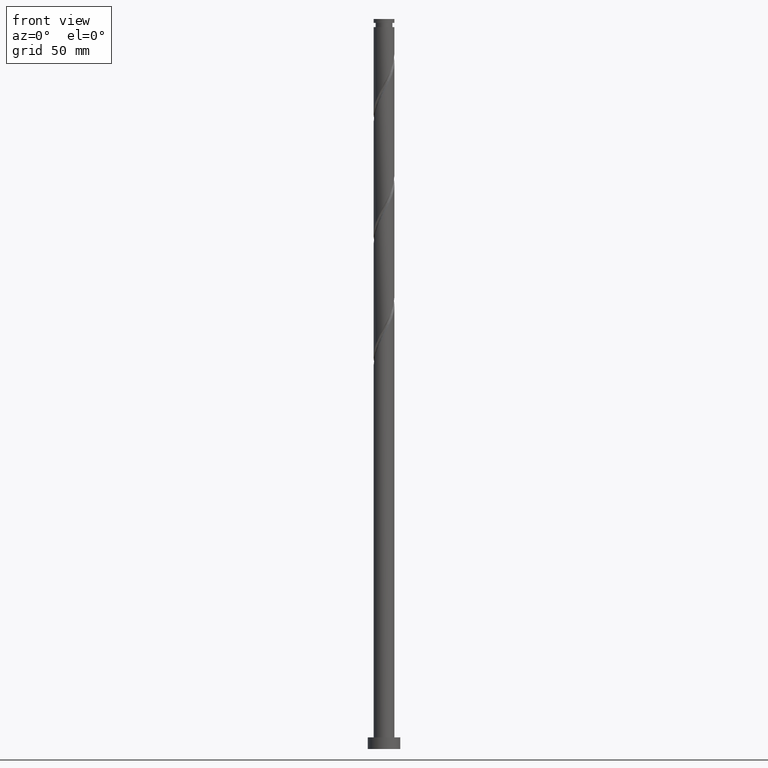
[diagram: clean part render]
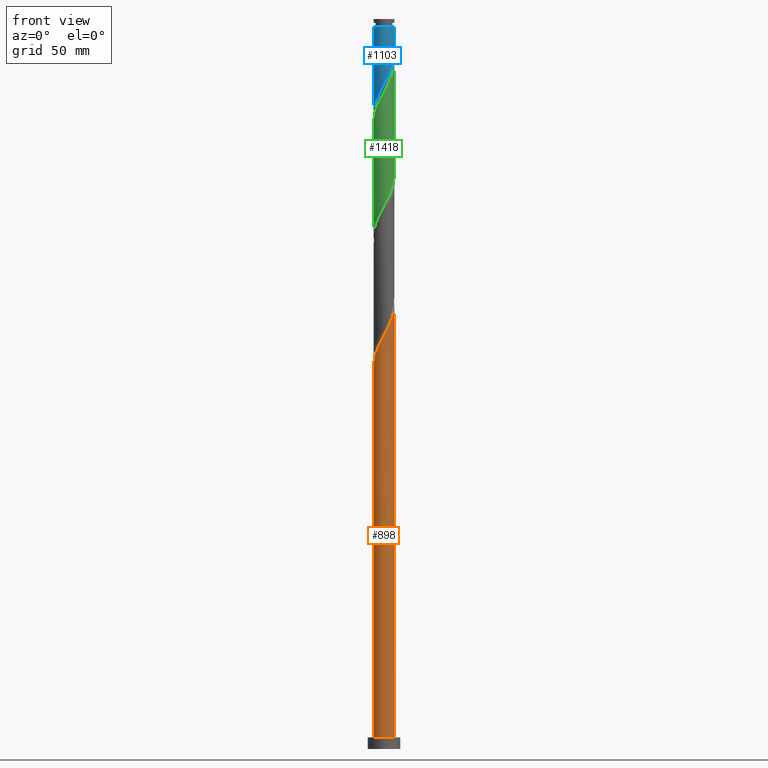
[diagram: same view with three faces highlighted in distinct colors, each labeled with its STEP entity id]
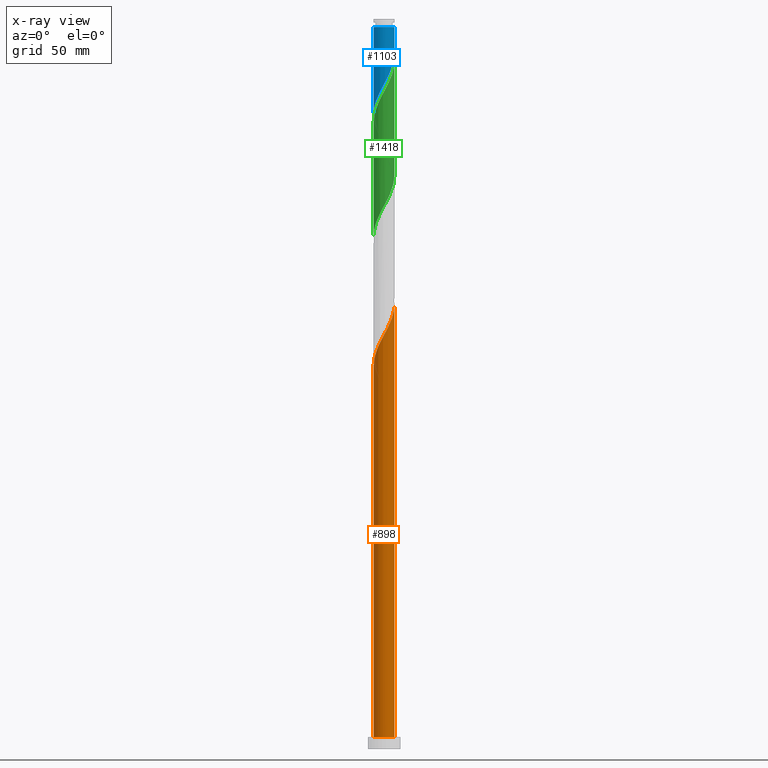
[diagram: x-ray of the same camera — body ghosted, the three highlighted faces saturated]
A machine part, front view with three faces highlighted in distinct colors.
The next image is the same camera in x-ray (body ghosted, the three faces saturated) — at least one of them is partly hidden behind the body in this view.
Their STEP definitions:

[orange] entity #898 — the highlighted cylindrical surface (edge-blend (fillet) strip) has radius 4.5 mm, axis along (-0, -0, -1).
#23 = ORIENTED_EDGE ( 'NONE', *, *, #960, .T. ) ;
#69 = ORIENTED_EDGE ( 'NONE', *, *, #1566, .F. ) ;
#95 = CARTESIAN_POINT ( 'NONE',  ( 3.449711278888141219, -2.889548769671832940, 185.8821435053400819 ) ) ;
#133 = VERTEX_POINT ( 'NONE', #401 ) ;
#144 = ORIENTED_EDGE ( 'NONE', *, *, #1041, .T. ) ;
#169 = CARTESIAN_POINT ( 'NONE',  ( 0.000000000000000000, 0.000000000000000000, 315.0000000000000000 ) ) ;
#175 = EDGE_LOOP ( 'NONE', ( #69, #1411, #144, #23 ) ) ;
#179 = DIRECTION ( 'NONE',  ( -1.000000000000000000, 0.000000000000000000, 0.000000000000000000 ) ) ;
#198 = CYLINDRICAL_SURFACE ( 'NONE', #943, 4.500000000000000000 ) ;
#212 = CARTESIAN_POINT ( 'NONE',  ( -4.100167112320058926, -1.854354240982300173, 169.0071435053400819 ) ) ;
#237 = CARTESIAN_POINT ( 'NONE',  ( 0.8954886933959598228, -4.410000000000006359, 180.2571435053400251 ) ) ;
#251 = CARTESIAN_POINT ( 'NONE',  ( 3.775285233751815461, -2.500859658072934089, 186.8196435053399682 ) ) ;
#263 = CARTESIAN_POINT ( 'NONE',  ( -1.106619855200059233, -4.361810690077811081, 176.5071435053399682 ) ) ;
#337 = FACE_OUTER_BOUND ( 'NONE', #175, .T. ) ;
#354 = CARTESIAN_POINT ( 'NONE',  ( -4.500000000000000000, 0.000000000000000000, 5.000000000000000000 ) ) ;
#374 = CARTESIAN_POINT ( 'NONE',  ( -0.6151618214612604163, -4.486496802515032911, 177.4446435053400251 ) ) ;
#381 = CARTESIAN_POINT ( 'NONE',  ( -3.584734724821537544, -2.720234723816808753, 170.8821435053400251 ) ) ;
#401 = CARTESIAN_POINT ( 'NONE',  ( 4.500000000000000000, 5.510910596163088569E-16, 5.000000000000000000 ) ) ;
#409 = CARTESIAN_POINT ( 'NONE',  ( 2.720234723816808753, -3.584734724821537544, 184.0071435053399966 ) ) ;
#477 = EDGE_CURVE ( 'NONE', #1034, #1369, #552, .T. ) ;
#482 = CARTESIAN_POINT ( 'NONE',  ( -4.500000000000005329, -4.328474321242565693E-16, 165.4576264274339792 ) ) ;
#506 = CARTESIAN_POINT ( 'NONE',  ( -4.410000000000006359, -0.8954886933959601558, 167.1321435053400251 ) ) ;
#545 = LINE ( 'NONE', #1403, #1069 ) ;
#552 =( BOUNDED_CURVE ( )  B_SPLINE_CURVE ( 2, ( #1386, #1238, #506, #1093, #212, #1706, #381, #1852, #1742, #1144, #681, #1110, #263, #374, #1271, #1264, #237, #980, #1714, #971, #409, #1731, #95, #251, #998, #555, #666, #1867, #673, #1860, #1257 ),
 .UNSPECIFIED., .F., .T. ) 
 B_SPLINE_CURVE_WITH_KNOTS ( ( 3, 2, 2, 2, 2, 2, 2, 2, 2, 2, 2, 2, 2, 2, 2, 3 ),
 ( 0.05453034012992229868, 0.06250000000000000000, 0.07142857142857139685, 0.08035714285714290472, 0.08928571428571430157, 0.09821428571428569843, 0.1071428571428570953, 0.1160714285714286031, 0.1250000000000000000, 0.1339285714285713969, 0.1428571428571429047, 0.1517857142857143016, 0.1607142857142856984, 0.1696428571428570953, 0.1785714285714286031, 0.1795303401299218615 ),
 .UNSPECIFIED. ) 
 CURVE ( )  GEOMETRIC_REPRESENTATION_ITEM ( )  RATIONAL_B_SPLINE_CURVE ( ( 0.9079949616362074094, 0.9039886423360707912, 0.9090909090909374823, 0.9033747362666124658, 0.9090909090909374823, 0.9033747362666124658, 0.9090909090909374823, 0.9033747362666124658, 0.9090909090909374823, 0.9033747362666124658, 0.9090909090909374823, 0.9033747362666124658, 0.9090909090909374823, 0.9033747362666124658, 0.9090909090909374823, 0.9033747362666124658, 0.9090909090909374823, 0.9033747362666124658, 0.9090909090909374823, 0.9033747362666124658, 0.9090909090909374823, 0.9033747362666124658, 0.9090909090909374823, 0.9033747362666124658, 0.9090909090909374823, 0.9033747362666124658, 0.9090909090909374823, 0.9033747362666124658, 0.9090909090909374823, 0.9084770030214794900, 0.9079949616362078535 ) ) 
 REPRESENTATION_ITEM ( '' )  );
#555 = CARTESIAN_POINT ( 'NONE',  ( 4.237124577640583034, -1.598077888938858049, 188.6946435053399966 ) ) ;
#636 = AXIS2_PLACEMENT_3D ( 'NONE', #1236, #799, #925 ) ;
#637 = DIRECTION ( 'NONE',  ( -0.000000000000000000, -0.000000000000000000, -1.000000000000000000 ) ) ;
#648 = DIRECTION ( 'NONE',  ( -0.000000000000000000, -0.000000000000000000, -1.000000000000000000 ) ) ;
#666 = CARTESIAN_POINT ( 'NONE',  ( 4.361810690077811081, -1.106619855200059233, 189.6321435053400251 ) ) ;
#673 = CARTESIAN_POINT ( 'NONE',  ( 4.498697073123638646, -0.1082803965123958490, 191.5071435053400535 ) ) ;
#681 = CARTESIAN_POINT ( 'NONE',  ( -2.049468773505896735, -4.006204905696198360, 174.6321435053400535 ) ) ;
#768 = CARTESIAN_POINT ( 'NONE',  ( -4.500000000000000000, 0.000000000000000000, 315.0000000000000000 ) ) ;
#799 = DIRECTION ( 'NONE',  ( 0.000000000000000000, 0.000000000000000000, 1.000000000000000000 ) ) ;
#898 = ADVANCED_FACE ( 'NONE', ( #337 ), #198, .T. ) ;
#925 = DIRECTION ( 'NONE',  ( 1.000000000000000000, 0.000000000000000000, 0.000000000000000000 ) ) ;
#943 = AXIS2_PLACEMENT_3D ( 'NONE', #169, #648, #179 ) ;
#960 = EDGE_CURVE ( 'NONE', #1086, #133, #1470, .T. ) ;
#971 = CARTESIAN_POINT ( 'NONE',  ( 2.316332123609148752, -3.891231568372342853, 183.0696435053400251 ) ) ;
#980 = CARTESIAN_POINT ( 'NONE',  ( 1.392376358355450039, -4.309102656267771891, 181.1946435053400251 ) ) ;
#998 = CARTESIAN_POINT ( 'NONE',  ( 4.006204905696198360, -2.049468773505896735, 187.7571435053399966 ) ) ;
#1034 = VERTEX_POINT ( 'NONE', #482 ) ;
#1041 = EDGE_CURVE ( 'NONE', #1034, #1086, #1687, .T. ) ;
#1069 = VECTOR ( 'NONE', #1844, 1000.000000000000000 ) ;
#1086 = VERTEX_POINT ( 'NONE', #354 ) ;
#1093 = CARTESIAN_POINT ( 'NONE',  ( -4.309102656267771891, -1.392376358355450483, 168.0696435053399966 ) ) ;
#1110 = CARTESIAN_POINT ( 'NONE',  ( -1.598077888938858049, -4.237124577640583034, 175.5696435053399966 ) ) ;
#1144 = CARTESIAN_POINT ( 'NONE',  ( -2.500859658072933200, -3.775285233751815461, 173.6946435053400251 ) ) ;
#1236 = CARTESIAN_POINT ( 'NONE',  ( 0.000000000000000000, 0.000000000000000000, 5.000000000000000000 ) ) ;
#1238 = CARTESIAN_POINT ( 'NONE',  ( -4.500000000000004441, -0.4522670168666588220, 166.2958975063976368 ) ) ;
#1257 = CARTESIAN_POINT ( 'NONE',  ( 4.500000000000005329, -1.865721690190761372E-16, 191.7076264274339792 ) ) ;
#1264 = CARTESIAN_POINT ( 'NONE',  ( 0.3986010284364694400, -4.510897343732239051, 179.3196435053400819 ) ) ;
#1271 = CARTESIAN_POINT ( 'NONE',  ( -0.1082803965123954049, -4.498697073123638646, 178.3821435053400251 ) ) ;
#1369 = VERTEX_POINT ( 'NONE', #1767 ) ;
#1386 = CARTESIAN_POINT ( 'NONE',  ( -4.500000000000005329, -4.328474321242566186E-16, 165.4576264274339792 ) ) ;
#1403 = CARTESIAN_POINT ( 'NONE',  ( 4.500000000000000000, 5.510910596163088569E-16, 315.0000000000000000 ) ) ;
#1411 = ORIENTED_EDGE ( 'NONE', *, *, #477, .F. ) ;
#1470 = CIRCLE ( 'NONE', #636, 4.500000000000000000 ) ;
#1566 = EDGE_CURVE ( 'NONE', #1369, #133, #545, .T. ) ;
#1687 = LINE ( 'NONE', #768, #1875 ) ;
#1706 = CARTESIAN_POINT ( 'NONE',  ( -3.891231568372342853, -2.316332123609149196, 169.9446435053400251 ) ) ;
#1714 = CARTESIAN_POINT ( 'NONE',  ( 1.854354240982299729, -4.100167112320058926, 182.1321435053400251 ) ) ;
#1731 = CARTESIAN_POINT ( 'NONE',  ( 3.124137324024466089, -3.278237881270730458, 184.9446435053400535 ) ) ;
#1742 = CARTESIAN_POINT ( 'NONE',  ( -2.889548769671832940, -3.449711278888141663, 172.7571435053400819 ) ) ;
#1767 = CARTESIAN_POINT ( 'NONE',  ( 4.500000000000005329, -1.865721690190761372E-16, 191.7076264274339792 ) ) ;
#1844 = DIRECTION ( 'NONE',  ( -0.000000000000000000, -0.000000000000000000, -1.000000000000000000 ) ) ;
#1852 = CARTESIAN_POINT ( 'NONE',  ( -3.278237881270730458, -3.124137324024466089, 171.8196435053400251 ) ) ;
#1860 = CARTESIAN_POINT ( 'NONE',  ( 4.500000000000006217, -0.05414803724876988966, 191.6072637392088609 ) ) ;
#1867 = CARTESIAN_POINT ( 'NONE',  ( 4.486496802515032911, -0.6151618214612607494, 190.5696435053400535 ) ) ;
#1875 = VECTOR ( 'NONE', #637, 1000.000000000000000 ) ;

[blue] entity #1103 — the highlighted cylindrical surface (edge-blend (fillet) strip) has radius 4.5 mm, axis along (-0, -0, -1).
#42 = EDGE_CURVE ( 'NONE', #1902, #300, #90, .T. ) ;
#53 = VERTEX_POINT ( 'NONE', #1716 ) ;
#79 = CARTESIAN_POINT ( 'NONE',  ( -3.775285233751811020, -2.500859658072928315, 278.6946435053400251 ) ) ;
#90 =( BOUNDED_CURVE ( )  B_SPLINE_CURVE ( 2, ( #826, #691, #119, #1001, #253, #1266, #376, #245, #1898, #557, #701, #711, #844, #1420, #383, #1586, #231, #683, #1440, #1304, #1285, #1869, #529, #79, #1128, #1294, #835, #1724, #819, #265, #1571 ),
 .UNSPECIFIED., .F., .T. ) 
 B_SPLINE_CURVE_WITH_KNOTS ( ( 3, 2, 2, 2, 2, 2, 2, 2, 2, 2, 2, 2, 2, 2, 2, 3 ),
 ( 0.3045303401299219725, 0.3125000000000000000, 0.3214285714285714524, 0.3303571428571428492, 0.3392857142857143016, 0.3482142857142856984, 0.3571428571428571508, 0.3660714285714285476, 0.3750000000000000000, 0.3839285714285714524, 0.3928571428571428492, 0.4017857142857143016, 0.4107142857142856984, 0.4196428571428571508, 0.4285714285714285476, 0.4295303401299220836 ),
 .UNSPECIFIED. ) 
 CURVE ( )  GEOMETRIC_REPRESENTATION_ITEM ( )  RATIONAL_B_SPLINE_CURVE ( ( 0.9079949616362013032, 0.9039886423360643519, 0.9090909090909310430, 0.9033747362666060265, 0.9090909090909310430, 0.9033747362666060265, 0.9090909090909310430, 0.9033747362666060265, 0.9090909090909310430, 0.9033747362666060265, 0.9090909090909310430, 0.9033747362666060265, 0.9090909090909310430, 0.9033747362666060265, 0.9090909090909310430, 0.9033747362666060265, 0.9090909090909310430, 0.9033747362666060265, 0.9090909090909310430, 0.9033747362666060265, 0.9090909090909310430, 0.9033747362666060265, 0.9090909090909310430, 0.9033747362666060265, 0.9090909090909310430, 0.9033747362666060265, 0.9090909090909310430, 0.9033747362666060265, 0.9090909090909310430, 0.9084770030214728287, 0.9079949616362011922 ) ) 
 REPRESENTATION_ITEM ( '' )  );
#100 = AXIS2_PLACEMENT_3D ( 'NONE', #1804, #1081, #1100 ) ;
#119 = CARTESIAN_POINT ( 'NONE',  ( 4.410000000000000142, -0.8954886933959605999, 298.3821435053400251 ) ) ;
#231 = CARTESIAN_POINT ( 'NONE',  ( -0.8954886933959602668, -4.410000000000000142, 285.2571435053400251 ) ) ;
#245 = CARTESIAN_POINT ( 'NONE',  ( 3.278237881270725573, -3.124137324024463425, 293.6946435053400251 ) ) ;
#253 = CARTESIAN_POINT ( 'NONE',  ( 4.100167112320052709, -1.854354240982299507, 296.5071435053400819 ) ) ;
#265 = CARTESIAN_POINT ( 'NONE',  ( -4.499999999999999112, -0.05414803724875251467, 273.9070232714711892 ) ) ;
#300 = VERTEX_POINT ( 'NONE', #619 ) ;
#325 = CARTESIAN_POINT ( 'NONE',  ( 0.000000000000000000, 0.000000000000000000, 311.5071435053400251 ) ) ;
#376 = CARTESIAN_POINT ( 'NONE',  ( 3.584734724821531326, -2.720234723816805644, 294.6321435053400819 ) ) ;
#383 = CARTESIAN_POINT ( 'NONE',  ( 0.1082803965123934897, -4.498697073123629764, 287.1321435053400819 ) ) ;
#396 = DIRECTION ( 'NONE',  ( -0.000000000000000000, -0.000000000000000000, -1.000000000000000000 ) ) ;
#438 = ORIENTED_EDGE ( 'NONE', *, *, #1244, .T. ) ;
#492 = FACE_OUTER_BOUND ( 'NONE', #733, .T. ) ;
#529 = CARTESIAN_POINT ( 'NONE',  ( -3.449711278888136334, -2.889548769671827166, 279.6321435053399682 ) ) ;
#557 = CARTESIAN_POINT ( 'NONE',  ( 2.500859658072928315, -3.775285233751811464, 291.8196435053400819 ) ) ;
#582 = ORIENTED_EDGE ( 'NONE', *, *, #836, .T. ) ;
#587 = CARTESIAN_POINT ( 'NONE',  ( 4.499999999999999112, -1.522428899195671870E-15, 300.0566605832460709 ) ) ;
#614 = DIRECTION ( 'NONE',  ( -0.000000000000000000, -0.000000000000000000, -1.000000000000000000 ) ) ;
#619 = CARTESIAN_POINT ( 'NONE',  ( -4.499999999999998224, -5.179243411969589551E-15, 273.8066605832460709 ) ) ;
#683 = CARTESIAN_POINT ( 'NONE',  ( -1.392376358355450039, -4.309102656267766562, 284.3196435053400819 ) ) ;
#691 = CARTESIAN_POINT ( 'NONE',  ( 4.500000000000000888, -0.4522670168666444446, 299.2183895042824702 ) ) ;
#701 = CARTESIAN_POINT ( 'NONE',  ( 2.049468773505890962, -4.006204905696194807, 290.8821435053400819 ) ) ;
#711 = CARTESIAN_POINT ( 'NONE',  ( 1.598077888938854496, -4.237124577640576817, 289.9446435053399682 ) ) ;
#733 = EDGE_LOOP ( 'NONE', ( #1836, #582, #438, #1319 ) ) ;
#816 = CIRCLE ( 'NONE', #878, 4.499999999999974243 ) ;
#819 = CARTESIAN_POINT ( 'NONE',  ( -4.498697073123629764, -0.1082803965123936979, 274.0071435053400819 ) ) ;
#826 = CARTESIAN_POINT ( 'NONE',  ( 4.500000000000000888, -1.522428899195672067E-15, 300.0566605832460709 ) ) ;
#835 = CARTESIAN_POINT ( 'NONE',  ( -4.361810690077804864, -1.106619855200055902, 275.8821435053400251 ) ) ;
#836 = EDGE_CURVE ( 'NONE', #949, #53, #816, .T. ) ;
#844 = CARTESIAN_POINT ( 'NONE',  ( 1.106619855200055902, -4.361810690077804864, 289.0071435053400251 ) ) ;
#858 = LINE ( 'NONE', #1738, #1693 ) ;
#878 = AXIS2_PLACEMENT_3D ( 'NONE', #325, #614, #1352 ) ;
#949 = VERTEX_POINT ( 'NONE', #1207 ) ;
#1001 = CARTESIAN_POINT ( 'NONE',  ( 4.309102656267766562, -1.392376358355450261, 297.4446435053401387 ) ) ;
#1054 = DIRECTION ( 'NONE',  ( -0.000000000000000000, -0.000000000000000000, -1.000000000000000000 ) ) ;
#1081 = DIRECTION ( 'NONE',  ( -0.000000000000000000, -0.000000000000000000, -1.000000000000000000 ) ) ;
#1100 = DIRECTION ( 'NONE',  ( -1.000000000000000000, 0.000000000000000000, 0.000000000000000000 ) ) ;
#1103 = ADVANCED_FACE ( 'NONE', ( #492 ), #1393, .T. ) ;
#1128 = CARTESIAN_POINT ( 'NONE',  ( -4.006204905696194807, -2.049468773505891406, 277.7571435053400819 ) ) ;
#1196 = VECTOR ( 'NONE', #1054, 1000.000000000000000 ) ;
#1207 = CARTESIAN_POINT ( 'NONE',  ( 4.499999999999974243, 5.510910596163074764E-16, 311.5071435053400251 ) ) ;
#1231 = CARTESIAN_POINT ( 'NONE',  ( 4.500000000000000000, 5.510910596163088569E-16, 315.0000000000000000 ) ) ;
#1244 = EDGE_CURVE ( 'NONE', #53, #300, #858, .T. ) ;
#1266 = CARTESIAN_POINT ( 'NONE',  ( 3.891231568372337968, -2.316332123609147864, 295.5696435053401387 ) ) ;
#1285 = CARTESIAN_POINT ( 'NONE',  ( -2.720234723816805200, -3.584734724821531326, 281.5071435053400819 ) ) ;
#1294 = CARTESIAN_POINT ( 'NONE',  ( -4.237124577640576817, -1.598077888938854496, 276.8196435053399682 ) ) ;
#1304 = CARTESIAN_POINT ( 'NONE',  ( -2.316332123609147864, -3.891231568372337968, 282.4446435053400819 ) ) ;
#1319 = ORIENTED_EDGE ( 'NONE', *, *, #42, .F. ) ;
#1352 = DIRECTION ( 'NONE',  ( -1.000000000000000000, 0.000000000000000000, 0.000000000000000000 ) ) ;
#1387 = LINE ( 'NONE', #1231, #1196 ) ;
#1393 = CYLINDRICAL_SURFACE ( 'NONE', #100, 4.500000000000000000 ) ;
#1420 = CARTESIAN_POINT ( 'NONE',  ( 0.6151618214612575297, -4.486496802515027582, 288.0696435053401387 ) ) ;
#1428 = EDGE_CURVE ( 'NONE', #949, #1902, #1387, .T. ) ;
#1440 = CARTESIAN_POINT ( 'NONE',  ( -1.854354240982299062, -4.100167112320052709, 283.3821435053400251 ) ) ;
#1571 = CARTESIAN_POINT ( 'NONE',  ( -4.499999999999998224, -5.179243411969589551E-15, 273.8066605832460709 ) ) ;
#1586 = CARTESIAN_POINT ( 'NONE',  ( -0.3986010284364707168, -4.510897343732231946, 286.1946435053400819 ) ) ;
#1693 = VECTOR ( 'NONE', #396, 1000.000000000000000 ) ;
#1716 = CARTESIAN_POINT ( 'NONE',  ( -4.499999999999974243, 0.000000000000000000, 311.5071435053400251 ) ) ;
#1724 = CARTESIAN_POINT ( 'NONE',  ( -4.486496802515027582, -0.6151618214612578628, 274.9446435053401387 ) ) ;
#1738 = CARTESIAN_POINT ( 'NONE',  ( -4.500000000000000000, 0.000000000000000000, 315.0000000000000000 ) ) ;
#1804 = CARTESIAN_POINT ( 'NONE',  ( 0.000000000000000000, 0.000000000000000000, 315.0000000000000000 ) ) ;
#1836 = ORIENTED_EDGE ( 'NONE', *, *, #1428, .F. ) ;
#1869 = CARTESIAN_POINT ( 'NONE',  ( -3.124137324024463425, -3.278237881270725573, 280.5696435053399682 ) ) ;
#1898 = CARTESIAN_POINT ( 'NONE',  ( 2.889548769671827166, -3.449711278888136778, 292.7571435053400251 ) ) ;
#1902 = VERTEX_POINT ( 'NONE', #587 ) ;

[green] entity #1418 — the highlighted cylindrical surface (edge-blend (fillet) strip) has radius 4.5 mm, axis along (-0, -0, -1).
#20 = CARTESIAN_POINT ( 'NONE',  ( 0.3986010284364694400, -4.510897343732239051, 284.3196435053400251 ) ) ;
#41 = CARTESIAN_POINT ( 'NONE',  ( -0.3986010284364707168, -4.510897343732231946, 233.6946435053400819 ) ) ;
#52 = CARTESIAN_POINT ( 'NONE',  ( -2.316332123609147864, -3.891231568372337968, 229.9446435053400535 ) ) ;
#108 =( BOUNDED_CURVE ( )  B_SPLINE_CURVE ( 2, ( #1672, #331, #1661, #1533, #631, #621, #1094, #1827, #204, #1202, #938, #1064, #476, #1799, #920, #41, #1221, #184, #1649, #52, #1819, #487, #793, #1075, #496, #1085, #1681, #341, #1239, #1523, #1835 ),
 .UNSPECIFIED., .F., .T. ) 
 B_SPLINE_CURVE_WITH_KNOTS ( ( 3, 2, 2, 2, 2, 2, 2, 2, 2, 2, 2, 2, 2, 2, 2, 3 ),
 ( 0.5545303401299221946, 0.5625000000000000000, 0.5714285714285713969, 0.5803571428571429047, 0.5892857142857143016, 0.5982142857142856984, 0.6071428571428570953, 0.6160714285714286031, 0.6250000000000000000, 0.6339285714285713969, 0.6428571428571429047, 0.6517857142857143016, 0.6607142857142856984, 0.6696428571428570953, 0.6785714285714286031, 0.6795303401299219725 ),
 .UNSPECIFIED. ) 
 CURVE ( )  GEOMETRIC_REPRESENTATION_ITEM ( )  RATIONAL_B_SPLINE_CURVE ( ( 0.9079949616362010811, 0.9039886423360644629, 0.9090909090909310430, 0.9033747362666060265, 0.9090909090909310430, 0.9033747362666060265, 0.9090909090909310430, 0.9033747362666060265, 0.9090909090909310430, 0.9033747362666060265, 0.9090909090909310430, 0.9033747362666060265, 0.9090909090909310430, 0.9033747362666060265, 0.9090909090909310430, 0.9033747362666060265, 0.9090909090909310430, 0.9033747362666060265, 0.9090909090909310430, 0.9033747362666060265, 0.9090909090909310430, 0.9033747362666060265, 0.9090909090909310430, 0.9033747362666060265, 0.9090909090909310430, 0.9033747362666060265, 0.9090909090909310430, 0.9033747362666060265, 0.9090909090909310430, 0.9084770030214728287, 0.9079949616362011922 ) ) 
 REPRESENTATION_ITEM ( '' )  );
#129 = CARTESIAN_POINT ( 'NONE',  ( 1.392376358355450039, -4.309102656267771891, 286.1946435053400251 ) ) ;
#141 = CARTESIAN_POINT ( 'NONE',  ( 4.237124577640583034, -1.598077888938858049, 293.6946435053399682 ) ) ;
#143 = DIRECTION ( 'NONE',  ( -0.000000000000000000, -0.000000000000000000, -1.000000000000000000 ) ) ;
#149 = LINE ( 'NONE', #1438, #1192 ) ;
#153 = EDGE_CURVE ( 'NONE', #724, #214, #292, .T. ) ;
#154 = ORIENTED_EDGE ( 'NONE', *, *, #1532, .F. ) ;
#164 = ORIENTED_EDGE ( 'NONE', *, *, #1909, .F. ) ;
#172 = CARTESIAN_POINT ( 'NONE',  ( 1.854354240982299729, -4.100167112320058926, 287.1321435053400819 ) ) ;
#184 = CARTESIAN_POINT ( 'NONE',  ( -1.392376358355450039, -4.309102656267766562, 231.8196435053400535 ) ) ;
#204 = CARTESIAN_POINT ( 'NONE',  ( 2.889548769671827166, -3.449711278888136778, 240.2571435053400819 ) ) ;
#214 = VERTEX_POINT ( 'NONE', #1188 ) ;
#274 = DIRECTION ( 'NONE',  ( -0.000000000000000000, -0.000000000000000000, -1.000000000000000000 ) ) ;
#284 = CARTESIAN_POINT ( 'NONE',  ( 4.486496802515032911, -0.6151618214612607494, 295.5696435053399114 ) ) ;
#292 =( BOUNDED_CURVE ( )  B_SPLINE_CURVE ( 2, ( #411, #729, #455, #1908, #886, #296, #445, #1637, #1459, #1042, #1021, #1499, #1480, #1919, #749, #20, #578, #129, #172, #1168, #1030, #306, #424, #895, #1765, #141, #607, #284, #761, #1489, #1617 ),
 .UNSPECIFIED., .F., .T. ) 
 B_SPLINE_CURVE_WITH_KNOTS ( ( 3, 2, 2, 2, 2, 2, 2, 2, 2, 2, 2, 2, 2, 2, 2, 3 ),
 ( 0.5545303401299223056, 0.5625000000000000000, 0.5714285714285713969, 0.5803571428571427937, 0.5892857142857143016, 0.5982142857142856984, 0.6071428571428572063, 0.6160714285714286031, 0.6250000000000000000, 0.6339285714285713969, 0.6428571428571427937, 0.6517857142857143016, 0.6607142857142856984, 0.6696428571428572063, 0.6785714285714286031, 0.6795303401299218615 ),
 .UNSPECIFIED. ) 
 CURVE ( )  GEOMETRIC_REPRESENTATION_ITEM ( )  RATIONAL_B_SPLINE_CURVE ( ( 0.9079949616362072984, 0.9039886423360709022, 0.9090909090909374823, 0.9033747362666124658, 0.9090909090909374823, 0.9033747362666124658, 0.9090909090909374823, 0.9033747362666124658, 0.9090909090909374823, 0.9033747362666124658, 0.9090909090909374823, 0.9033747362666124658, 0.9090909090909374823, 0.9033747362666124658, 0.9090909090909374823, 0.9033747362666124658, 0.9090909090909374823, 0.9033747362666124658, 0.9090909090909374823, 0.9033747362666124658, 0.9090909090909374823, 0.9033747362666124658, 0.9090909090909374823, 0.9033747362666124658, 0.9090909090909374823, 0.9033747362666124658, 0.9090909090909374823, 0.9033747362666124658, 0.9090909090909374823, 0.9084770030214794900, 0.9079949616362078535 ) ) 
 REPRESENTATION_ITEM ( '' )  );
#293 = CARTESIAN_POINT ( 'NONE',  ( -4.500000000000006217, 2.313494895836544447E-16, 270.4576264274340360 ) ) ;
#295 = EDGE_CURVE ( 'NONE', #724, #1913, #1402, .T. ) ;
#296 = CARTESIAN_POINT ( 'NONE',  ( -3.891231568372342853, -2.316332123609149196, 274.9446435053400251 ) ) ;
#306 = CARTESIAN_POINT ( 'NONE',  ( 3.124137324024466089, -3.278237881270730458, 289.9446435053399682 ) ) ;
#331 = CARTESIAN_POINT ( 'NONE',  ( 4.499999999999998224, -0.4522670168666539925, 246.7183895042824986 ) ) ;
#341 = CARTESIAN_POINT ( 'NONE',  ( -4.486496802515027582, -0.6151618214612578628, 222.4446435053400819 ) ) ;
#411 = CARTESIAN_POINT ( 'NONE',  ( -4.500000000000006217, 2.313494895836544447E-16, 270.4576264274340360 ) ) ;
#424 = CARTESIAN_POINT ( 'NONE',  ( 3.449711278888141219, -2.889548769671832940, 290.8821435053401387 ) ) ;
#434 = CARTESIAN_POINT ( 'NONE',  ( -4.500000000000000000, -1.078387136930267496E-14, 221.3066605832461562 ) ) ;
#445 = CARTESIAN_POINT ( 'NONE',  ( -3.584734724821537544, -2.720234723816808753, 275.8821435053399682 ) ) ;
#455 = CARTESIAN_POINT ( 'NONE',  ( -4.410000000000006359, -0.8954886933959601558, 272.1321435053400819 ) ) ;
#476 = CARTESIAN_POINT ( 'NONE',  ( 1.106619855200055902, -4.361810690077804864, 236.5071435053400251 ) ) ;
#487 = CARTESIAN_POINT ( 'NONE',  ( -3.124137324024463425, -3.278237881270725573, 228.0696435053400535 ) ) ;
#496 = CARTESIAN_POINT ( 'NONE',  ( -4.006204905696194807, -2.049468773505891406, 225.2571435053401387 ) ) ;
#514 = CARTESIAN_POINT ( 'NONE',  ( -4.500000000000000000, 0.000000000000000000, 315.0000000000000000 ) ) ;
#578 = CARTESIAN_POINT ( 'NONE',  ( 0.8954886933959598228, -4.410000000000006359, 285.2571435053400251 ) ) ;
#607 = CARTESIAN_POINT ( 'NONE',  ( 4.361810690077811081, -1.106619855200059233, 294.6321435053400251 ) ) ;
#621 = CARTESIAN_POINT ( 'NONE',  ( 3.891231568372337968, -2.316332123609147864, 243.0696435053400535 ) ) ;
#631 = CARTESIAN_POINT ( 'NONE',  ( 4.100167112320052709, -1.854354240982299507, 244.0071435053400819 ) ) ;
#632 = VERTEX_POINT ( 'NONE', #1927 ) ;
#724 = VERTEX_POINT ( 'NONE', #293 ) ;
#729 = CARTESIAN_POINT ( 'NONE',  ( -4.500000000000003553, -0.4522670168666590995, 271.2958975063975231 ) ) ;
#732 = DIRECTION ( 'NONE',  ( -1.000000000000000000, 0.000000000000000000, 0.000000000000000000 ) ) ;
#749 = CARTESIAN_POINT ( 'NONE',  ( -0.1082803965123954049, -4.498697073123638646, 283.3821435053400251 ) ) ;
#761 = CARTESIAN_POINT ( 'NONE',  ( 4.498697073123638646, -0.1082803965123958490, 296.5071435053400251 ) ) ;
#793 = CARTESIAN_POINT ( 'NONE',  ( -3.449711278888136334, -2.889548769671827166, 227.1321435053400819 ) ) ;
#857 = CARTESIAN_POINT ( 'NONE',  ( 0.000000000000000000, 0.000000000000000000, 315.0000000000000000 ) ) ;
#886 = CARTESIAN_POINT ( 'NONE',  ( -4.100167112320058926, -1.854354240982300173, 274.0071435053400819 ) ) ;
#889 = EDGE_LOOP ( 'NONE', ( #164, #1348, #1484, #154 ) ) ;
#895 = CARTESIAN_POINT ( 'NONE',  ( 3.775285233751815461, -2.500859658072934089, 291.8196435053399682 ) ) ;
#920 = CARTESIAN_POINT ( 'NONE',  ( 0.1082803965123934897, -4.498697073123629764, 234.6321435053400535 ) ) ;
#938 = CARTESIAN_POINT ( 'NONE',  ( 2.049468773505890962, -4.006204905696194807, 238.3821435053400535 ) ) ;
#1021 = CARTESIAN_POINT ( 'NONE',  ( -2.049468773505896735, -4.006204905696198360, 279.6321435053399682 ) ) ;
#1030 = CARTESIAN_POINT ( 'NONE',  ( 2.720234723816808753, -3.584734724821537544, 289.0071435053400819 ) ) ;
#1042 = CARTESIAN_POINT ( 'NONE',  ( -2.500859658072933200, -3.775285233751815461, 278.6946435053399114 ) ) ;
#1064 = CARTESIAN_POINT ( 'NONE',  ( 1.598077888938854496, -4.237124577640576817, 237.4446435053400535 ) ) ;
#1075 = CARTESIAN_POINT ( 'NONE',  ( -3.775285233751811020, -2.500859658072928315, 226.1946435053400251 ) ) ;
#1085 = CARTESIAN_POINT ( 'NONE',  ( -4.237124577640576817, -1.598077888938854496, 224.3196435053400535 ) ) ;
#1094 = CARTESIAN_POINT ( 'NONE',  ( 3.584734724821531326, -2.720234723816805644, 242.1321435053400819 ) ) ;
#1168 = CARTESIAN_POINT ( 'NONE',  ( 2.316332123609148752, -3.891231568372342853, 288.0696435053399682 ) ) ;
#1188 = CARTESIAN_POINT ( 'NONE',  ( 4.500000000000006217, -8.582319774877502558E-16, 296.7076264274339792 ) ) ;
#1192 = VECTOR ( 'NONE', #274, 1000.000000000000000 ) ;
#1202 = CARTESIAN_POINT ( 'NONE',  ( 2.500859658072928315, -3.775285233751811464, 239.3196435053400535 ) ) ;
#1221 = CARTESIAN_POINT ( 'NONE',  ( -0.8954886933959602668, -4.410000000000000142, 232.7571435053400819 ) ) ;
#1239 = CARTESIAN_POINT ( 'NONE',  ( -4.498697073123629764, -0.1082803965123936979, 221.5071435053400535 ) ) ;
#1348 = ORIENTED_EDGE ( 'NONE', *, *, #153, .F. ) ;
#1402 = LINE ( 'NONE', #514, #1782 ) ;
#1418 = ADVANCED_FACE ( 'NONE', ( #1619 ), #1473, .T. ) ;
#1438 = CARTESIAN_POINT ( 'NONE',  ( 4.500000000000000000, 5.510910596163088569E-16, 315.0000000000000000 ) ) ;
#1459 = CARTESIAN_POINT ( 'NONE',  ( -2.889548769671832940, -3.449711278888141663, 277.7571435053400819 ) ) ;
#1473 = CYLINDRICAL_SURFACE ( 'NONE', #1849, 4.500000000000000000 ) ;
#1480 = CARTESIAN_POINT ( 'NONE',  ( -1.106619855200059233, -4.361810690077811081, 281.5071435053399682 ) ) ;
#1484 = ORIENTED_EDGE ( 'NONE', *, *, #295, .T. ) ;
#1489 = CARTESIAN_POINT ( 'NONE',  ( 4.500000000000006217, -0.05414803724876988966, 296.6072637392089177 ) ) ;
#1499 = CARTESIAN_POINT ( 'NONE',  ( -1.598077888938858049, -4.237124577640583034, 280.5696435053400251 ) ) ;
#1512 = DIRECTION ( 'NONE',  ( -0.000000000000000000, -0.000000000000000000, -1.000000000000000000 ) ) ;
#1523 = CARTESIAN_POINT ( 'NONE',  ( -4.499999999999999112, -0.05414803724876158381, 221.4070232714712176 ) ) ;
#1532 = EDGE_CURVE ( 'NONE', #632, #1913, #108, .T. ) ;
#1533 = CARTESIAN_POINT ( 'NONE',  ( 4.309102656267766562, -1.392376358355450261, 244.9446435053400819 ) ) ;
#1617 = CARTESIAN_POINT ( 'NONE',  ( 4.500000000000006217, -8.582319774877502558E-16, 296.7076264274340360 ) ) ;
#1619 = FACE_OUTER_BOUND ( 'NONE', #889, .T. ) ;
#1637 = CARTESIAN_POINT ( 'NONE',  ( -3.278237881270730458, -3.124137324024466089, 276.8196435053400251 ) ) ;
#1649 = CARTESIAN_POINT ( 'NONE',  ( -1.854354240982299062, -4.100167112320052709, 230.8821435053400535 ) ) ;
#1661 = CARTESIAN_POINT ( 'NONE',  ( 4.410000000000000142, -0.8954886933959605999, 245.8821435053400819 ) ) ;
#1672 = CARTESIAN_POINT ( 'NONE',  ( 4.499999999999998224, -2.209014481185876808E-15, 247.5566605832460425 ) ) ;
#1681 = CARTESIAN_POINT ( 'NONE',  ( -4.361810690077804864, -1.106619855200055902, 223.3821435053400251 ) ) ;
#1765 = CARTESIAN_POINT ( 'NONE',  ( 4.006204905696198360, -2.049468773505896735, 292.7571435053401387 ) ) ;
#1782 = VECTOR ( 'NONE', #1512, 1000.000000000000000 ) ;
#1799 = CARTESIAN_POINT ( 'NONE',  ( 0.6151618214612575297, -4.486496802515027582, 235.5696435053400819 ) ) ;
#1819 = CARTESIAN_POINT ( 'NONE',  ( -2.720234723816805200, -3.584734724821531326, 229.0071435053400819 ) ) ;
#1827 = CARTESIAN_POINT ( 'NONE',  ( 3.278237881270725573, -3.124137324024463425, 241.1946435053399966 ) ) ;
#1835 = CARTESIAN_POINT ( 'NONE',  ( -4.500000000000000000, -1.078387136930267496E-14, 221.3066605832461562 ) ) ;
#1849 = AXIS2_PLACEMENT_3D ( 'NONE', #857, #143, #732 ) ;
#1908 = CARTESIAN_POINT ( 'NONE',  ( -4.309102656267771891, -1.392376358355450483, 273.0696435053400251 ) ) ;
#1909 = EDGE_CURVE ( 'NONE', #214, #632, #149, .T. ) ;
#1913 = VERTEX_POINT ( 'NONE', #434 ) ;
#1919 = CARTESIAN_POINT ( 'NONE',  ( -0.6151618214612604163, -4.486496802515032911, 282.4446435053400819 ) ) ;
#1927 = CARTESIAN_POINT ( 'NONE',  ( 4.499999999999999112, -2.209014481185876808E-15, 247.5566605832460709 ) ) ;